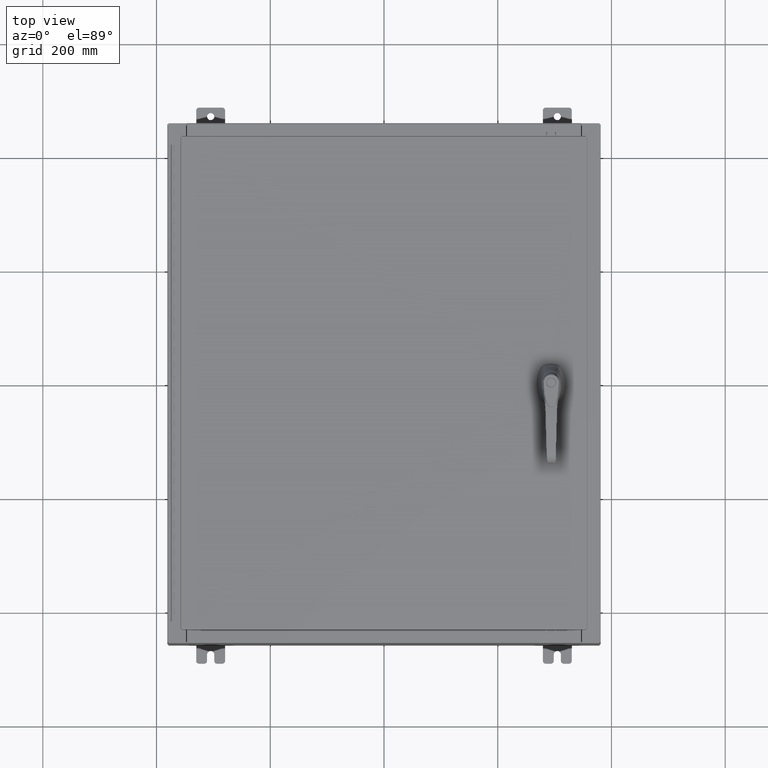
[diagram: clean part render]
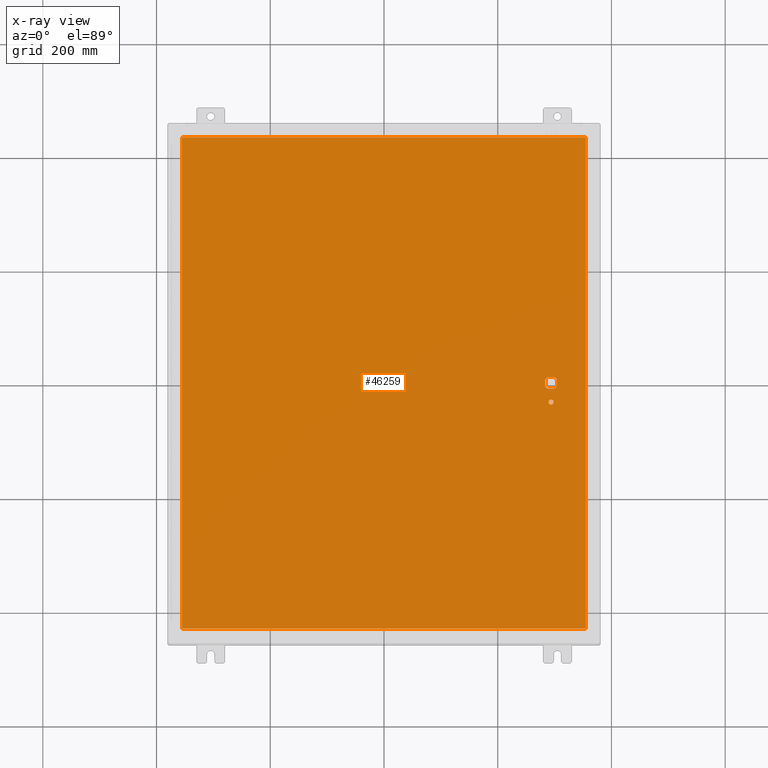
[diagram: x-ray — body ghosted, one internal face saturated and labeled with its STEP entity id]
A machine part, top view, then the same camera in x-ray: the body is ghosted and one INTERNAL B-rep face — a face not visible from any outside direction — is saturated and labeled: STEP entity #46259.
In plain terms, the highlighted planar face has unit normal (0, 0, -1).
Its self-contained STEP definition (entity closure, byte-faithful):
#320 = AXIS2_PLACEMENT_3D ( 'NONE', #61238, #4404, #70735 ) ;
#723 = LINE ( 'NONE', #76606, #6629 ) ;
#1653 = EDGE_CURVE ( 'NONE', #120138, #53424, #49406, .T. ) ;
#1880 = CIRCLE ( 'NONE', #17326, 0.4499999999999168000 ) ;
#2985 = VERTEX_POINT ( 'NONE', #97430 ) ;
#4404 = DIRECTION ( 'NONE',  ( -0.0000000000000000000, -0.0000000000000000000, 1.000000000000000000 ) ) ;
#5272 = CARTESIAN_POINT ( 'NONE',  ( 11.77822737075630300, 0.4029999999999250300, -0.07470000000000003000 ) ) ;
#6429 = EDGE_CURVE ( 'NONE', #22622, #10933, #32294, .T. ) ;
#6629 = VECTOR ( 'NONE', #19812, 39.37007874015748100 ) ;
#7317 = VERTEX_POINT ( 'NONE', #78322 ) ;
#7963 = CARTESIAN_POINT ( 'NONE',  ( 11.57799999999999400, -1.338000000000000100, -0.07470000000000003000 ) ) ;
#10933 = VERTEX_POINT ( 'NONE', #69460 ) ;
#11679 = CIRCLE ( 'NONE', #72382, 0.1715000000000011500 ) ;
#12483 = CARTESIAN_POINT ( 'NONE',  ( 11.57799999999999400, 0.0000000000000000000, -0.07470000000000003000 ) ) ;
#13075 = ORIENTED_EDGE ( 'NONE', *, *, #18568, .F. ) ;
#13134 = EDGE_CURVE ( 'NONE', #66845, #43945, #87970, .T. ) ;
#14653 = ORIENTED_EDGE ( 'NONE', *, *, #20237, .T. ) ;
#14875 = FACE_OUTER_BOUND ( 'NONE', #121200, .T. ) ;
#16468 = DIRECTION ( 'NONE',  ( 1.000000000000000000, 0.0000000000000000000, 0.0000000000000000000 ) ) ;
#17326 = AXIS2_PLACEMENT_3D ( 'NONE', #12483, #78838, #22046 ) ;
#17477 = DIRECTION ( 'NONE',  ( -1.000000000000000000, 0.0000000000000000000, 0.0000000000000000000 ) ) ;
#18568 = EDGE_CURVE ( 'NONE', #37579, #7317, #20234, .T. ) ;
#19154 = DIRECTION ( 'NONE',  ( -0.0000000000000000000, -0.0000000000000000000, 1.000000000000000000 ) ) ;
#19812 = DIRECTION ( 'NONE',  ( 0.0000000000000000000, -1.000000000000000000, 0.0000000000000000000 ) ) ;
#20234 = LINE ( 'NONE', #65819, #121194 ) ;
#20237 = EDGE_CURVE ( 'NONE', #102455, #37781, #120945, .T. ) ;
#21716 = DIRECTION ( 'NONE',  ( 1.000000000000000000, -0.0000000000000000000, -0.0000000000000000000 ) ) ;
#22046 = DIRECTION ( 'NONE',  ( -1.000000000000000000, -5.329070518200740300E-015, 0.0000000000000000000 ) ) ;
#22622 = VERTEX_POINT ( 'NONE', #89192 ) ;
#23285 = VERTEX_POINT ( 'NONE', #49838 ) ;
#25103 = DIRECTION ( 'NONE',  ( 0.0000000000000000000, 1.000000000000000000, 0.0000000000000000000 ) ) ;
#26019 = CARTESIAN_POINT ( 'NONE',  ( 0.0000000000000000000, 0.0000000000000000000, -0.07470000000000000300 ) ) ;
#26660 = EDGE_CURVE ( 'NONE', #53424, #120138, #11679, .T. ) ;
#32294 = CIRCLE ( 'NONE', #88747, 0.4499999999999168000 ) ;
#35524 = DIRECTION ( 'NONE',  ( -1.000000000000000000, 0.0000000000000000000, -0.0000000000000000000 ) ) ;
#37348 = ORIENTED_EDGE ( 'NONE', *, *, #75436, .F. ) ;
#37579 = VERTEX_POINT ( 'NONE', #99695 ) ;
#37781 = VERTEX_POINT ( 'NONE', #72704 ) ;
#38249 = EDGE_CURVE ( 'NONE', #43945, #23285, #1880, .T. ) ;
#41814 = AXIS2_PLACEMENT_3D ( 'NONE', #109098, #52247, #118676 ) ;
#43592 = EDGE_LOOP ( 'NONE', ( #14653, #37348, #82315, #64215, #76519, #64508, #72837, #67233 ) ) ;
#43945 = VERTEX_POINT ( 'NONE', #110952 ) ;
#44318 = AXIS2_PLACEMENT_3D ( 'NONE', #75947, #19154, #85496 ) ;
#45497 = ORIENTED_EDGE ( 'NONE', *, *, #81829, .F. ) ;
#45787 = DIRECTION ( 'NONE',  ( 5.457491617345625000E-015, -1.000000000000000000, 0.0000000000000000000 ) ) ;
#46259 = ADVANCED_FACE ( 'NONE', ( #87653, #14875, #65415 ), #63805, .T. ) ;
#49406 = CIRCLE ( 'NONE', #320, 0.1715000000000011500 ) ;
#49838 = CARTESIAN_POINT ( 'NONE',  ( 11.17500000000006600, 0.2002273707563075900, -0.07470000000000003000 ) ) ;
#50898 = LINE ( 'NONE', #111490, #98398 ) ;
#52247 = DIRECTION ( 'NONE',  ( -0.0000000000000000000, -0.0000000000000000000, 1.000000000000000000 ) ) ;
#52771 = AXIS2_PLACEMENT_3D ( 'NONE', #26019, #92404, #35524 ) ;
#53033 = CARTESIAN_POINT ( 'NONE',  ( 0.0000000000000000000, 0.4029999999999252000, -0.07470000000000003000 ) ) ;
#53424 = VERTEX_POINT ( 'NONE', #83662 ) ;
#53467 = VERTEX_POINT ( 'NONE', #55908 ) ;
#53964 = ORIENTED_EDGE ( 'NONE', *, *, #26660, .T. ) ;
#55312 = EDGE_CURVE ( 'NONE', #23285, #22622, #723, .T. ) ;
#55908 = CARTESIAN_POINT ( 'NONE',  ( 11.98099999999992000, 0.2002273707563075900, -0.07470000000000003000 ) ) ;
#55996 = DIRECTION ( 'NONE',  ( -0.0000000000000000000, -0.0000000000000000000, 1.000000000000000000 ) ) ;
#56129 = LINE ( 'NONE', #72257, #103629 ) ;
#56991 = EDGE_CURVE ( 'NONE', #10933, #102455, #50898, .T. ) ;
#61238 = CARTESIAN_POINT ( 'NONE',  ( 11.57799999999999400, -1.338000000000000100, -0.07470000000000003000 ) ) ;
#62735 = VECTOR ( 'NONE', #63042, 39.37007874015748100 ) ;
#63042 = DIRECTION ( 'NONE',  ( -1.000000000000000000, 0.0000000000000000000, 0.0000000000000000000 ) ) ;
#63805 = PLANE ( 'NONE',  #52771 ) ;
#64215 = ORIENTED_EDGE ( 'NONE', *, *, #13134, .T. ) ;
#64508 = ORIENTED_EDGE ( 'NONE', *, *, #55312, .T. ) ;
#64708 = VECTOR ( 'NONE', #45787, 39.37007874015748100 ) ;
#64951 = CARTESIAN_POINT ( 'NONE',  ( 11.98099999999992000, 6.538620706741751200E-014, -0.07470000000000003000 ) ) ;
#65221 = EDGE_LOOP ( 'NONE', ( #53964, #108731 ) ) ;
#65415 = FACE_BOUND ( 'NONE', #43592, .T. ) ;
#65819 = CARTESIAN_POINT ( 'NONE',  ( -13.99030000000000700, 17.00630000000000000, -0.07470000000000019700 ) ) ;
#66845 = VERTEX_POINT ( 'NONE', #5272 ) ;
#67233 = ORIENTED_EDGE ( 'NONE', *, *, #56991, .T. ) ;
#69460 = CARTESIAN_POINT ( 'NONE',  ( 11.37777262924368300, -0.4029999999999250300, -0.07470000000000003000 ) ) ;
#70443 = VERTEX_POINT ( 'NONE', #89271 ) ;
#70735 = DIRECTION ( 'NONE',  ( -1.000000000000000000, 0.0000000000000000000, 0.0000000000000000000 ) ) ;
#72257 = CARTESIAN_POINT ( 'NONE',  ( 13.99029999999999200, 17.00630000000000300, -0.07470000000000129300 ) ) ;
#72382 = AXIS2_PLACEMENT_3D ( 'NONE', #7963, #74317, #17477 ) ;
#72704 = CARTESIAN_POINT ( 'NONE',  ( 11.98099999999992000, -0.2002273707563067300, -0.07470000000000003000 ) ) ;
#72837 = ORIENTED_EDGE ( 'NONE', *, *, #6429, .T. ) ;
#74271 = LINE ( 'NONE', #78501, #77235 ) ;
#74272 = CARTESIAN_POINT ( 'NONE',  ( 11.40649999999999200, -1.338000000000000100, -0.07470000000000003000 ) ) ;
#74317 = DIRECTION ( 'NONE',  ( -0.0000000000000000000, -0.0000000000000000000, 1.000000000000000000 ) ) ;
#75436 = EDGE_CURVE ( 'NONE', #53467, #37781, #95898, .T. ) ;
#75947 = CARTESIAN_POINT ( 'NONE',  ( 11.57799999999999400, 0.0000000000000000000, -0.07470000000000003000 ) ) ;
#76519 = ORIENTED_EDGE ( 'NONE', *, *, #38249, .T. ) ;
#76606 = CARTESIAN_POINT ( 'NONE',  ( 11.17500000000006600, 0.0000000000000000000, -0.07470000000000003000 ) ) ;
#76821 = CARTESIAN_POINT ( 'NONE',  ( 11.77822737075630300, -0.4029999999999252000, -0.07470000000000003000 ) ) ;
#76970 = CIRCLE ( 'NONE', #44318, 0.4499999999999168000 ) ;
#77235 = VECTOR ( 'NONE', #21716, 39.37007874015748100 ) ;
#78322 = CARTESIAN_POINT ( 'NONE',  ( -13.99030000000000700, -17.00630000000000000, -0.07470000000000000300 ) ) ;
#78501 = CARTESIAN_POINT ( 'NONE',  ( -13.99030000000000700, -17.00630000000000000, -0.07470000000000019700 ) ) ;
#78838 = DIRECTION ( 'NONE',  ( -0.0000000000000000000, -0.0000000000000000000, 1.000000000000000000 ) ) ;
#80212 = ORIENTED_EDGE ( 'NONE', *, *, #99233, .F. ) ;
#81829 = EDGE_CURVE ( 'NONE', #2985, #70443, #106825, .T. ) ;
#81886 = CARTESIAN_POINT ( 'NONE',  ( 13.99029999999999200, -17.00630000000000000, -0.07470000000000019700 ) ) ;
#82315 = ORIENTED_EDGE ( 'NONE', *, *, #113314, .T. ) ;
#83662 = CARTESIAN_POINT ( 'NONE',  ( 11.74949999999999400, -1.338000000000000100, -0.07470000000000003000 ) ) ;
#85496 = DIRECTION ( 'NONE',  ( -1.000000000000000000, -5.329070518200740300E-015, 0.0000000000000000000 ) ) ;
#87653 = FACE_BOUND ( 'NONE', #65221, .T. ) ;
#87970 = LINE ( 'NONE', #53033, #62735 ) ;
#88747 = AXIS2_PLACEMENT_3D ( 'NONE', #112869, #55996, #122424 ) ;
#89192 = CARTESIAN_POINT ( 'NONE',  ( 11.17500000000006600, -0.2002273707563079800, -0.07470000000000003000 ) ) ;
#89271 = CARTESIAN_POINT ( 'NONE',  ( 13.99029999999999200, 17.00630000000000300, -0.07470000000000000300 ) ) ;
#91346 = DIRECTION ( 'NONE',  ( -1.000000000000000000, -0.0000000000000000000, -0.0000000000000000000 ) ) ;
#92404 = DIRECTION ( 'NONE',  ( 0.0000000000000000000, 0.0000000000000000000, -1.000000000000000000 ) ) ;
#94575 = EDGE_CURVE ( 'NONE', #70443, #37579, #56129, .T. ) ;
#95865 = ORIENTED_EDGE ( 'NONE', *, *, #94575, .F. ) ;
#95898 = LINE ( 'NONE', #64951, #64708 ) ;
#97430 = CARTESIAN_POINT ( 'NONE',  ( 13.99029999999999200, -17.00630000000000000, -0.07470000000000000300 ) ) ;
#98398 = VECTOR ( 'NONE', #16468, 39.37007874015748100 ) ;
#99233 = EDGE_CURVE ( 'NONE', #7317, #2985, #74271, .T. ) ;
#99695 = CARTESIAN_POINT ( 'NONE',  ( -13.99030000000000700, 17.00630000000000300, -0.07470000000000000300 ) ) ;
#102455 = VERTEX_POINT ( 'NONE', #76821 ) ;
#103629 = VECTOR ( 'NONE', #91346, 39.37007874015748100 ) ;
#103838 = VECTOR ( 'NONE', #25103, 39.37007874015748100 ) ;
#106825 = LINE ( 'NONE', #81886, #103838 ) ;
#108731 = ORIENTED_EDGE ( 'NONE', *, *, #1653, .T. ) ;
#109098 = CARTESIAN_POINT ( 'NONE',  ( 11.57799999999999400, 0.0000000000000000000, -0.07470000000000003000 ) ) ;
#110952 = CARTESIAN_POINT ( 'NONE',  ( 11.37777262924368300, 0.4029999999999252000, -0.07470000000000003000 ) ) ;
#111490 = CARTESIAN_POINT ( 'NONE',  ( 0.0000000000000000000, -0.4029999999999252000, -0.07470000000000003000 ) ) ;
#112869 = CARTESIAN_POINT ( 'NONE',  ( 11.57799999999999400, 0.0000000000000000000, -0.07470000000000003000 ) ) ;
#113314 = EDGE_CURVE ( 'NONE', #53467, #66845, #76970, .T. ) ;
#118676 = DIRECTION ( 'NONE',  ( -1.000000000000000000, -1.776356839400246700E-015, 0.0000000000000000000 ) ) ;
#120138 = VERTEX_POINT ( 'NONE', #74272 ) ;
#120945 = CIRCLE ( 'NONE', #41814, 0.4499999999999168000 ) ;
#121194 = VECTOR ( 'NONE', #122677, 39.37007874015748100 ) ;
#121200 = EDGE_LOOP ( 'NONE', ( #45497, #80212, #13075, #95865 ) ) ;
#122424 = DIRECTION ( 'NONE',  ( -1.000000000000000000, -1.776356839400246700E-015, 0.0000000000000000000 ) ) ;
#122677 = DIRECTION ( 'NONE',  ( 0.0000000000000000000, -1.000000000000000000, 0.0000000000000000000 ) ) ;